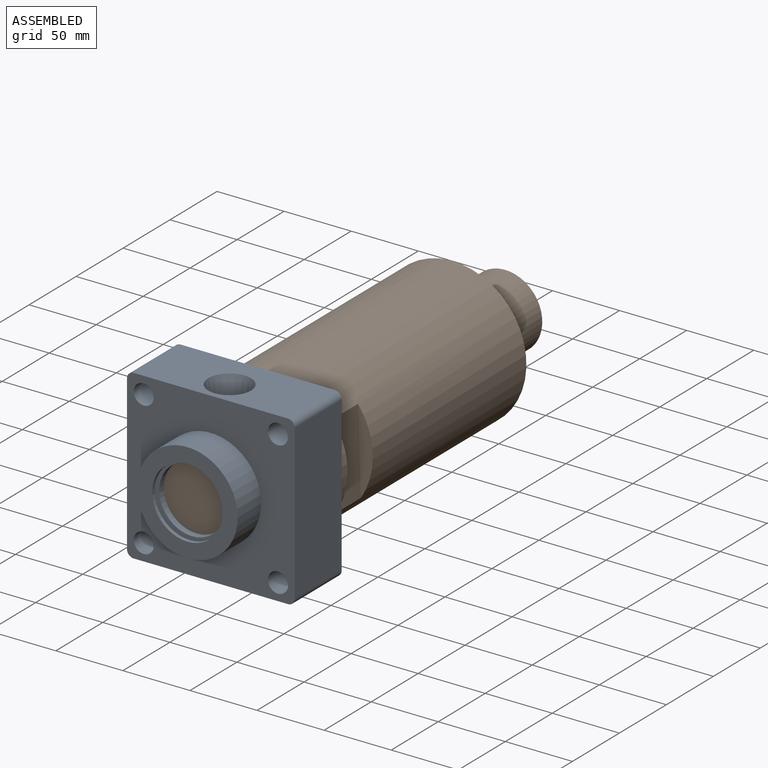
[diagram: assembled view]
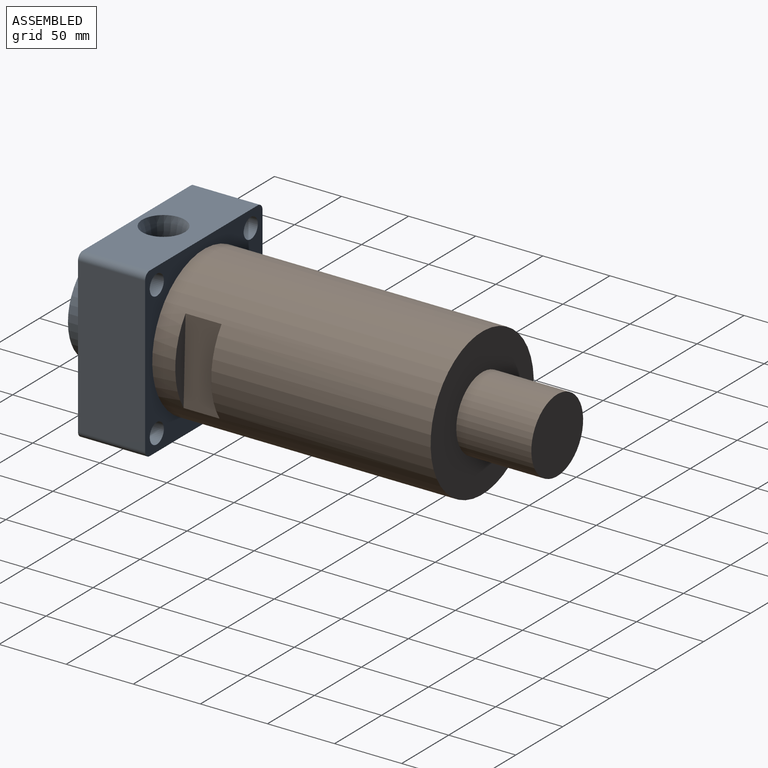
[diagram: assembled view, second angle]
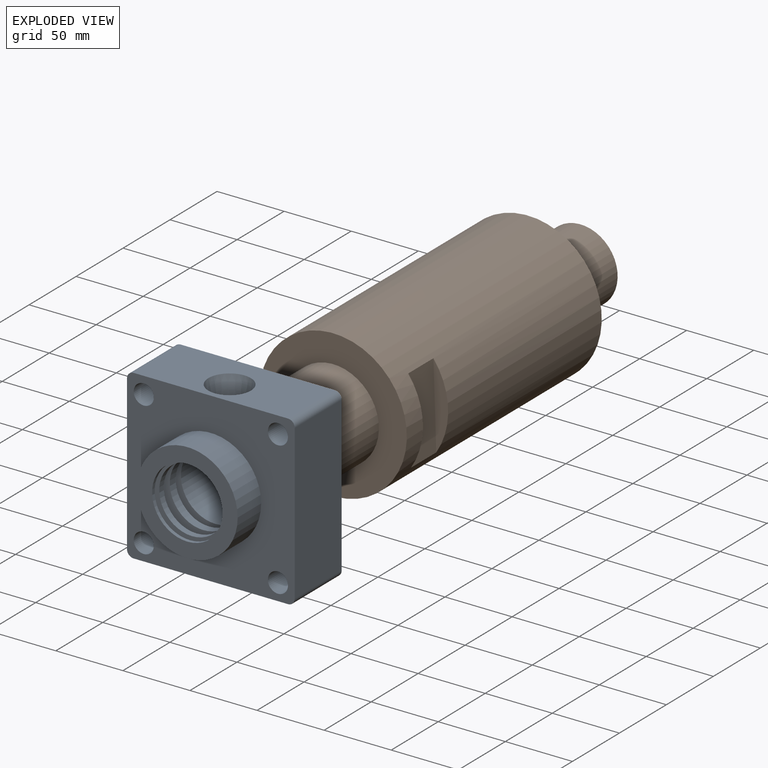
[diagram: exploded view]
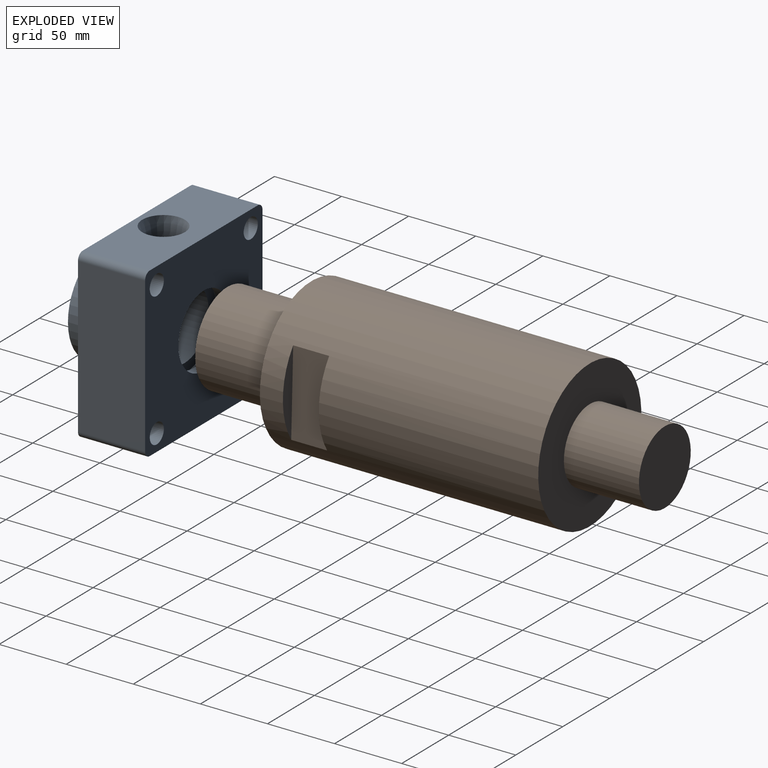
[diagram: exploded view, second angle]
ASSEMBLY  parts=2 mates=2
PART A: 36 faces, bbox 125x75x125 mm
  f0: plane 115x50mm, normal (1,0,0), area 5750mm2, adj f4,f5,f10,f13
  f1: plane 115x50mm, normal (0,0,1), area 4961.7mm2, adj f4,f5,f10,f11,f16
  f2: plane 115x50mm, normal (-1,0,0), area 5750mm2, adj f4,f5,f11,f12
  f3: plane 115x50mm, normal (0,0,-1), area 5750mm2, adj f4,f5,f12,f13
  f4: plane 125x125mm, normal (0,-1,0), area 10478.8mm2, adj f0,f1,f2,f3,f6,f7,f8,f9
  f5: plane 125x125mm, normal (0,1,0), area 12603.3mm2, adj f0,f1,f2,f3,f6,f7,f8,f9
  f6: cylinder r=7.5mm len=50mm, axis (0,-1,0), area 2356.2mm2, adj f4,f5
  f7: cylinder r=7.5mm len=50mm, axis (0,-1,0), area 2356.2mm2, adj f4,f5
  f8: cylinder r=7.5mm len=50mm, axis (0,-1,0), area 2356.2mm2, adj f4,f5
  f9: cylinder r=7.5mm len=50mm, axis (0,-1,0), area 2356.2mm2, adj f4,f5
  f10: cylinder r=5mm len=50mm, axis (0,-1,0), area 392.7mm2, adj f0,f1,f4,f5
  f11: cylinder r=5mm len=50mm, axis (0,1,0), area 392.7mm2, adj f1,f2,f4,f5
  f12: cylinder r=5mm len=50mm, axis (0,-1,0), area 392.7mm2, adj f2,f3,f4,f5
  f13: cylinder r=5mm len=50mm, axis (0,1,0), area 392.7mm2, adj f0,f3,f4,f5
  f14: cylinder r=37.5mm len=75mm, axis (0,1,0), area 5890.5mm2, adj f4,f15
  f15: plane 75x75mm, normal (0,-1,0), area 2250.5mm2, adj f14,f35
  f16: cone r=17.75mm half-angle=13.4deg, axis (0,0,1), area 1325.5mm2, adj f1,f18
  f17: cylinder r=8.39mm len=23.74mm, axis (0,0,-1), area 1214.1mm2, adj f18,f23
  f18: plane 24.78x24.78mm, normal (0,0,1), area 260.8mm2, adj f16,f17
  f19: cylinder r=27.02mm len=54.04mm, axis (0,1,0), area 1234.9mm2, adj f5,f20
  f20: plane 65.58x65.58mm, normal (0,-1,0), area 1084.8mm2, adj f19,f21
  f21: cylinder r=32.79mm len=65.58mm, axis (0,1,0), area 1446.4mm2, adj f20,f22
  f22: plane 65.58x65.58mm, normal (0,1,0), area 1313.7mm2, adj f21,f23
  f23: cylinder r=25.63mm len=51.27mm, axis (0,1,0), area 4764.4mm2, adj f17,f22,f24
  f24: plane 61.05x61.05mm, normal (0,-1,0), area 862.4mm2, adj f23,f25
  f25: cylinder r=30.52mm len=61.05mm, axis (0,1,0), area 1262.5mm2, adj f24,f26
  f26: plane 61.05x61.05mm, normal (0,1,0), area 980.1mm2, adj f25,f27
  f27: cylinder r=24.89mm len=49.79mm, axis (0,1,0), area 987.9mm2, adj f26,f28
  f28: plane 62.97x62.97mm, normal (0,-1,0), area 1167.3mm2, adj f27,f29
  f29: cylinder r=31.48mm len=62.97mm, axis (0,1,0), area 1385.3mm2, adj f28,f30
  f30: plane 62.97x62.97mm, normal (0,1,0), area 1231.2mm2, adj f29,f31
  f31: cylinder r=24.48mm len=48.96mm, axis (0,1,0), area 739.2mm2, adj f30,f32
  f32: plane 61.05x61.05mm, normal (0,-1,0), area 1044mm2, adj f31,f33
  f33: cylinder r=30.52mm len=61.05mm, axis (0,1,0), area 447.7mm2, adj f32,f34
  f34: plane 61.05x61.05mm, normal (0,1,0), area 759.4mm2, adj f33,f35
  f35: cylinder r=26.27mm len=52.53mm, axis (0,1,0), area 444mm2, adj f15,f34
PART B: 13 faces, bbox 109.8x326.2x109.8 mm
  f0: cylinder r=54.89mm len=207.46mm, axis (0,-1,0), area 67957.4mm2, adj f4,f5,f7,f8,f9,f10,f11,f12
  f1: plane 68.16x68.16mm, normal (0,-1,0), area 3648.4mm2, adj f6
  f2: plane 55.15x55.15mm, normal (0,1,0), area 2388.8mm2, adj f3
  f3: cylinder r=27.57mm len=55.93mm, axis (0,-1,0), area 9690.1mm2, adj f2,f4
  f4: plane 109.78x109.78mm, normal (0,1,0), area 7076.2mm2, adj f0,f3
  f5: plane 109.78x109.78mm, normal (0,-1,0), area 5816.5mm2, adj f0,f6
  f6: cylinder r=34.08mm len=68.16mm, axis (0,-1,0), area 13444.9mm2, adj f1,f5
  f7: plane 62.91x9.91mm, normal (0,-1,0), area 423.6mm2, adj f0,f8
  f8: plane 62.91x26.79mm, normal (1,0,0), area 1685.3mm2, adj f0,f7,f9
  f9: plane 62.91x9.91mm, normal (0,1,0), area 423.6mm2, adj f0,f8
  f10: plane 62.91x9.91mm, normal (0,-1,0), area 423.6mm2, adj f0,f12
  f11: plane 62.91x9.91mm, normal (0,1,0), area 423.6mm2, adj f0,f12
  f12: plane 62.91x26.79mm, normal (-1,0,0), area 1685.3mm2, adj f0,f10,f11
PLACE A t=(277.04,26.43,-0.57)mm fixed
PLACE B rot(axis=(0,-1,0),1.9deg) t=(277.04,-36.37,-0.57)mm
MATE cylindrical A.f14 <-> B.f0  axis (0,1,0) through (277.04,-36.07,-0.57)mm
MATE planar B.f0 <-> A.f8  axis (0,-1,0) through (277.04,26.43,-0.57)mm
